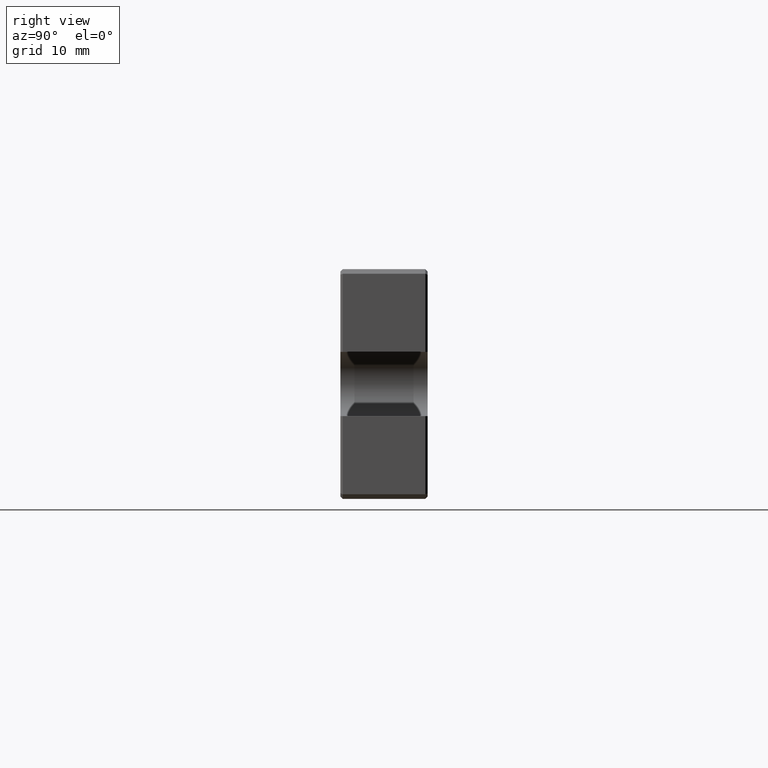
[diagram: clean part render]
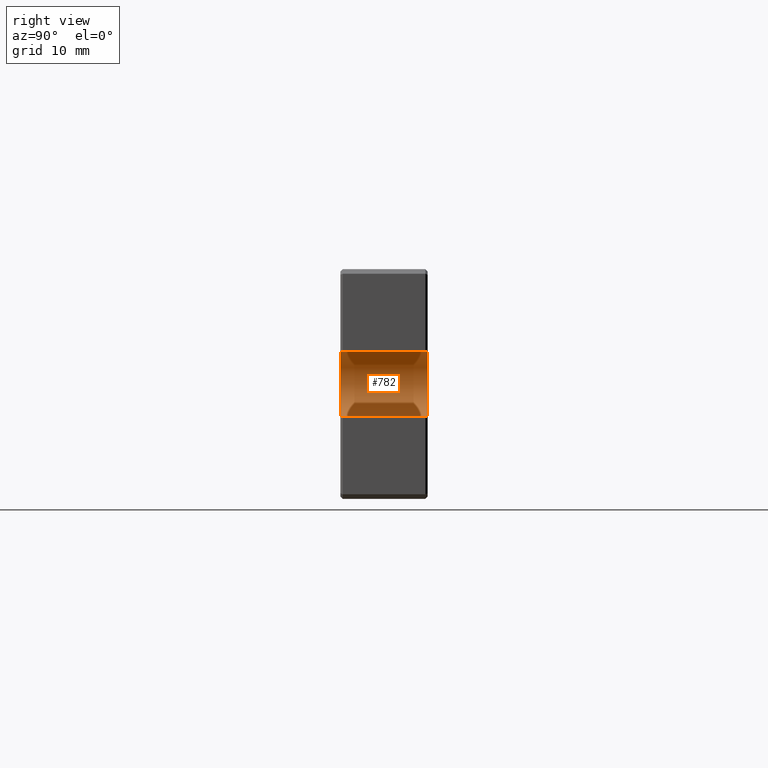
[diagram: same view with one face highlighted and labeled with its STEP entity id]
A machine part, right view. The second image highlights one B-rep face of the part: STEP entity #782.
In plain terms, the highlighted cylindrical surface (edge-blend (fillet) strip) has radius 3.5 mm, axis along (-0, 1, -0).
Its self-contained STEP definition (entity closure, byte-faithful):
#51 = CARTESIAN_POINT ( 'NONE',  ( 19.00000000000000355, 0.000000000000000000, -3.500000000000000444 ) ) ;
#52 = AXIS2_PLACEMENT_3D ( 'NONE', #1016, #184, #498 ) ;
#66 = VERTEX_POINT ( 'NONE', #51 ) ;
#73 = CIRCLE ( 'NONE', #52, 3.500000000000000000 ) ;
#103 = VERTEX_POINT ( 'NONE', #153 ) ;
#117 = VECTOR ( 'NONE', #404, 1000.000000000000000 ) ;
#128 = EDGE_CURVE ( 'NONE', #650, #754, #1171, .T. ) ;
#153 = CARTESIAN_POINT ( 'NONE',  ( 19.00000000000000355, 9.500000000000000000, -3.500000000000000444 ) ) ;
#161 = EDGE_LOOP ( 'NONE', ( #968, #276, #974, #434 ) ) ;
#184 = DIRECTION ( 'NONE',  ( 0.000000000000000000, 1.000000000000000000, 0.000000000000000000 ) ) ;
#213 = CARTESIAN_POINT ( 'NONE',  ( 19.00000000000000355, 0.000000000000000000, -4.336808689942017736E-16 ) ) ;
#244 = EDGE_CURVE ( 'NONE', #66, #103, #628, .T. ) ;
#276 = ORIENTED_EDGE ( 'NONE', *, *, #128, .F. ) ;
#278 = EDGE_CURVE ( 'NONE', #103, #754, #73, .T. ) ;
#298 = CIRCLE ( 'NONE', #1173, 3.500000000000000000 ) ;
#303 = DIRECTION ( 'NONE',  ( 0.000000000000000000, 0.000000000000000000, 1.000000000000000000 ) ) ;
#308 = DIRECTION ( 'NONE',  ( -0.000000000000000000, 1.000000000000000000, -0.000000000000000000 ) ) ;
#325 = CARTESIAN_POINT ( 'NONE',  ( 19.00000000000000355, 0.000000000000000000, 3.499999999999999556 ) ) ;
#360 = CARTESIAN_POINT ( 'NONE',  ( 19.00000000000000355, 0.000000000000000000, -3.500000000000000444 ) ) ;
#382 = CARTESIAN_POINT ( 'NONE',  ( 19.00000000000000355, 9.500000000000000000, 3.499999999999999556 ) ) ;
#404 = DIRECTION ( 'NONE',  ( -0.000000000000000000, 1.000000000000000000, -0.000000000000000000 ) ) ;
#434 = ORIENTED_EDGE ( 'NONE', *, *, #244, .T. ) ;
#498 = DIRECTION ( 'NONE',  ( 0.000000000000000000, 0.000000000000000000, 1.000000000000000000 ) ) ;
#628 = LINE ( 'NONE', #360, #852 ) ;
#650 = VERTEX_POINT ( 'NONE', #1108 ) ;
#703 = AXIS2_PLACEMENT_3D ( 'NONE', #213, #308, #303 ) ;
#754 = VERTEX_POINT ( 'NONE', #382 ) ;
#760 = EDGE_CURVE ( 'NONE', #66, #650, #298, .T. ) ;
#763 = DIRECTION ( 'NONE',  ( 0.000000000000000000, 1.000000000000000000, 0.000000000000000000 ) ) ;
#768 = CARTESIAN_POINT ( 'NONE',  ( 19.00000000000000355, 0.000000000000000000, -4.336808689942017736E-16 ) ) ;
#774 = CYLINDRICAL_SURFACE ( 'NONE', #703, 3.500000000000000000 ) ;
#782 = ADVANCED_FACE ( 'NONE', ( #1052 ), #774, .F. ) ;
#852 = VECTOR ( 'NONE', #1004, 1000.000000000000000 ) ;
#968 = ORIENTED_EDGE ( 'NONE', *, *, #278, .T. ) ;
#974 = ORIENTED_EDGE ( 'NONE', *, *, #760, .F. ) ;
#1004 = DIRECTION ( 'NONE',  ( -0.000000000000000000, 1.000000000000000000, -0.000000000000000000 ) ) ;
#1016 = CARTESIAN_POINT ( 'NONE',  ( 19.00000000000000355, 9.500000000000000000, -4.336808689942017736E-16 ) ) ;
#1052 = FACE_OUTER_BOUND ( 'NONE', #161, .T. ) ;
#1108 = CARTESIAN_POINT ( 'NONE',  ( 19.00000000000000355, 0.000000000000000000, 3.499999999999999556 ) ) ;
#1155 = DIRECTION ( 'NONE',  ( 0.000000000000000000, 0.000000000000000000, 1.000000000000000000 ) ) ;
#1171 = LINE ( 'NONE', #325, #117 ) ;
#1173 = AXIS2_PLACEMENT_3D ( 'NONE', #768, #763, #1155 ) ;